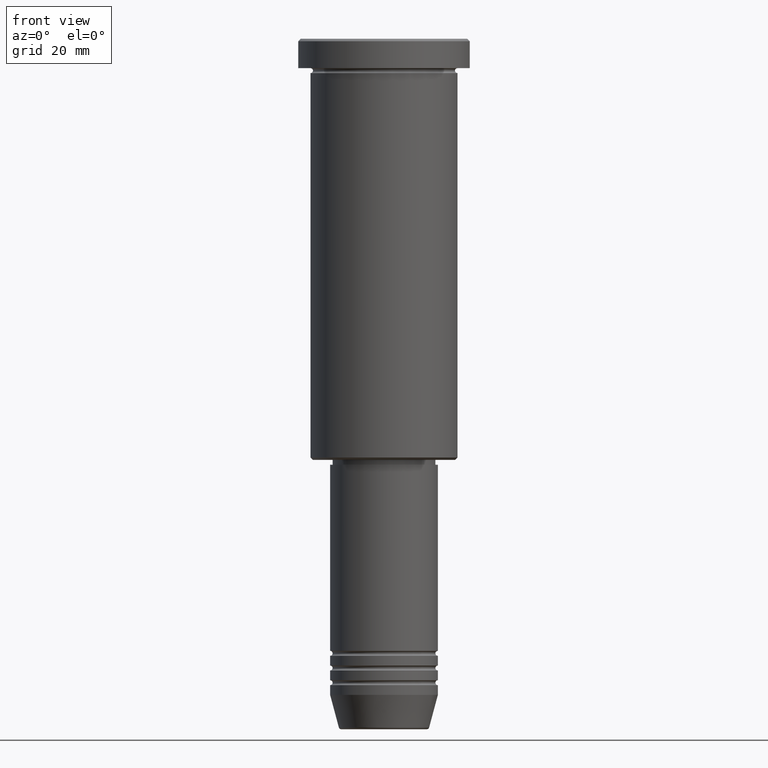
[diagram: clean part render]
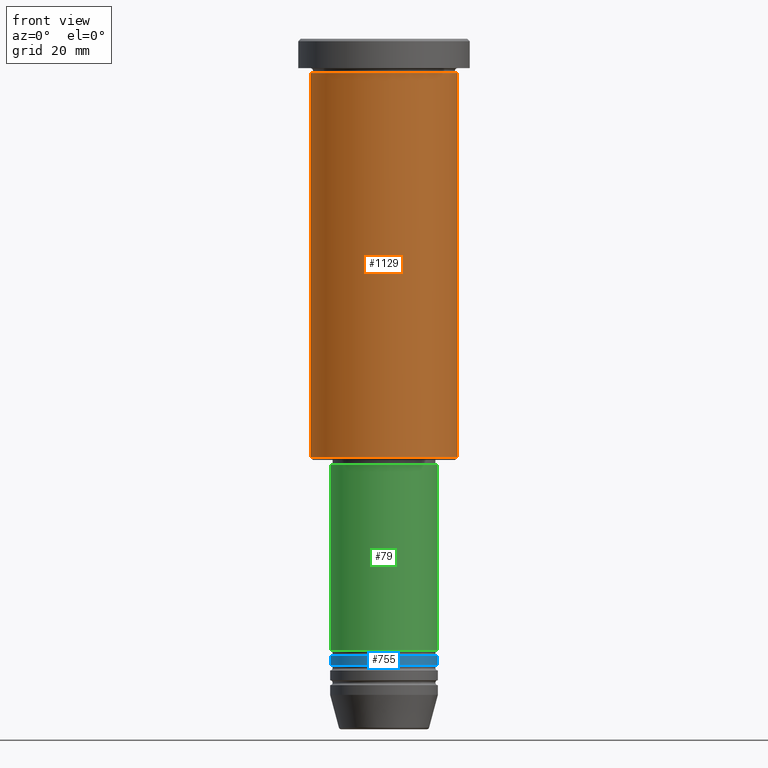
[diagram: same view with three faces highlighted in distinct colors, each labeled with its STEP entity id]
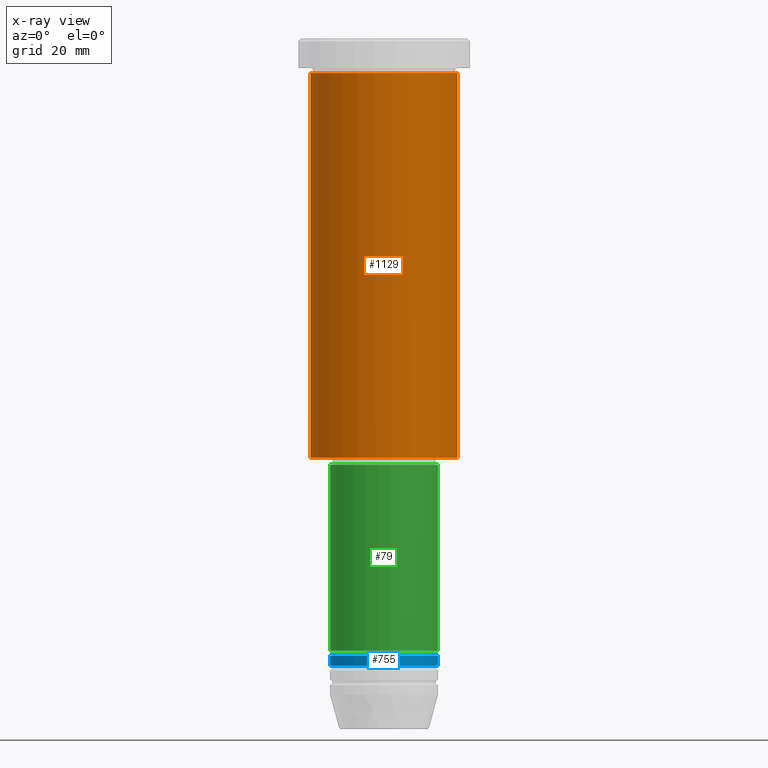
[diagram: x-ray of the same camera — body ghosted, the three highlighted faces saturated]
A machine part, front view with three faces highlighted in distinct colors.
The next image is the same camera in x-ray (body ghosted, the three faces saturated) — at least one of them is partly hidden behind the body in this view.
Their STEP definitions:

[orange] entity #1129 — the highlighted cylindrical surface (partial cylindrical patch) has radius 15 mm, axis along (-0, -0, 1).
#21 = EDGE_CURVE ( 'NONE', #873, #903, #604, .T. ) ;
#29 = VERTEX_POINT ( 'NONE', #278 ) ;
#42 = CARTESIAN_POINT ( 'NONE',  ( 15.00000000000000000, 0.000000000000000000, -85.50000000000004263 ) ) ;
#193 = EDGE_CURVE ( 'NONE', #29, #873, #473, .T. ) ;
#227 = CARTESIAN_POINT ( 'NONE',  ( 15.00000000000000000, 0.000000000000000000, 0.000000000000000000 ) ) ;
#273 = EDGE_CURVE ( 'NONE', #321, #903, #662, .T. ) ;
#278 = CARTESIAN_POINT ( 'NONE',  ( -15.00000000000000000, 1.836970198721029589E-15, -85.50000000000004263 ) ) ;
#317 = EDGE_CURVE ( 'NONE', #29, #321, #992, .T. ) ;
#321 = VERTEX_POINT ( 'NONE', #42 ) ;
#344 = CARTESIAN_POINT ( 'NONE',  ( 0.000000000000000000, 0.000000000000000000, -6.999999999999995559 ) ) ;
#357 = FACE_OUTER_BOUND ( 'NONE', #1064, .T. ) ;
#436 = DIRECTION ( 'NONE',  ( -0.000000000000000000, -0.000000000000000000, 1.000000000000000000 ) ) ;
#458 = AXIS2_PLACEMENT_3D ( 'NONE', #888, #436, #802 ) ;
#473 = LINE ( 'NONE', #728, #914 ) ;
#528 = DIRECTION ( 'NONE',  ( -0.000000000000000000, -0.000000000000000000, 1.000000000000000000 ) ) ;
#535 = ORIENTED_EDGE ( 'NONE', *, *, #21, .F. ) ;
#559 = CARTESIAN_POINT ( 'NONE',  ( 0.000000000000000000, 0.000000000000000000, -85.50000000000004263 ) ) ;
#584 = VECTOR ( 'NONE', #940, 1000.000000000000000 ) ;
#604 = CIRCLE ( 'NONE', #975, 15.00000000000000000 ) ;
#629 = DIRECTION ( 'NONE',  ( -0.000000000000000000, -0.000000000000000000, 1.000000000000000000 ) ) ;
#655 = DIRECTION ( 'NONE',  ( -0.000000000000000000, -0.000000000000000000, 1.000000000000000000 ) ) ;
#662 = LINE ( 'NONE', #227, #584 ) ;
#688 = ORIENTED_EDGE ( 'NONE', *, *, #273, .T. ) ;
#728 = CARTESIAN_POINT ( 'NONE',  ( -15.00000000000000000, 1.836970198721029589E-15, 0.000000000000000000 ) ) ;
#800 = AXIS2_PLACEMENT_3D ( 'NONE', #559, #655, #1024 ) ;
#802 = DIRECTION ( 'NONE',  ( 1.000000000000000000, 0.000000000000000000, 0.000000000000000000 ) ) ;
#873 = VERTEX_POINT ( 'NONE', #1043 ) ;
#888 = CARTESIAN_POINT ( 'NONE',  ( 0.000000000000000000, 0.000000000000000000, 0.000000000000000000 ) ) ;
#903 = VERTEX_POINT ( 'NONE', #1156 ) ;
#914 = VECTOR ( 'NONE', #629, 1000.000000000000000 ) ;
#940 = DIRECTION ( 'NONE',  ( -0.000000000000000000, -0.000000000000000000, 1.000000000000000000 ) ) ;
#975 = AXIS2_PLACEMENT_3D ( 'NONE', #344, #528, #1068 ) ;
#992 = CIRCLE ( 'NONE', #800, 15.00000000000000000 ) ;
#1024 = DIRECTION ( 'NONE',  ( -1.000000000000000000, 0.000000000000000000, 0.000000000000000000 ) ) ;
#1027 = ORIENTED_EDGE ( 'NONE', *, *, #317, .T. ) ;
#1043 = CARTESIAN_POINT ( 'NONE',  ( -15.00000000000000000, 1.836970198721029589E-15, -6.999999999999995559 ) ) ;
#1064 = EDGE_LOOP ( 'NONE', ( #1095, #1027, #688, #535 ) ) ;
#1068 = DIRECTION ( 'NONE',  ( 1.000000000000000000, 0.000000000000000000, 0.000000000000000000 ) ) ;
#1075 = CYLINDRICAL_SURFACE ( 'NONE', #458, 15.00000000000000000 ) ;
#1095 = ORIENTED_EDGE ( 'NONE', *, *, #193, .F. ) ;
#1129 = ADVANCED_FACE ( 'NONE', ( #357 ), #1075, .T. ) ;
#1156 = CARTESIAN_POINT ( 'NONE',  ( 15.00000000000000000, 0.000000000000000000, -6.999999999999995559 ) ) ;

[blue] entity #755 — the highlighted cylindrical surface (partial cylindrical patch) has radius 11 mm, axis along (-0, -0, 1).
#11 = EDGE_LOOP ( 'NONE', ( #377, #19, #130, #740 ) ) ;
#19 = ORIENTED_EDGE ( 'NONE', *, *, #689, .T. ) ;
#20 = LINE ( 'NONE', #385, #586 ) ;
#35 = CARTESIAN_POINT ( 'NONE',  ( 0.000000000000000000, 0.000000000000000000, 0.000000000000000000 ) ) ;
#36 = VERTEX_POINT ( 'NONE', #1122 ) ;
#39 = DIRECTION ( 'NONE',  ( -0.000000000000000000, -0.000000000000000000, 1.000000000000000000 ) ) ;
#70 = EDGE_CURVE ( 'NONE', #36, #628, #994, .T. ) ;
#97 = DIRECTION ( 'NONE',  ( -0.000000000000000000, -0.000000000000000000, 1.000000000000000000 ) ) ;
#130 = ORIENTED_EDGE ( 'NONE', *, *, #70, .T. ) ;
#149 = CARTESIAN_POINT ( 'NONE',  ( 0.000000000000000000, 0.000000000000000000, -125.9999999999999716 ) ) ;
#166 = CARTESIAN_POINT ( 'NONE',  ( -11.00000000000000000, 1.347111479062088405E-15, -125.9999999999999716 ) ) ;
#270 = DIRECTION ( 'NONE',  ( -0.000000000000000000, -0.000000000000000000, 1.000000000000000000 ) ) ;
#307 = DIRECTION ( 'NONE',  ( 1.000000000000000000, 0.000000000000000000, 0.000000000000000000 ) ) ;
#377 = ORIENTED_EDGE ( 'NONE', *, *, #425, .F. ) ;
#385 = CARTESIAN_POINT ( 'NONE',  ( -11.00000000000000000, 1.347111479062088405E-15, 0.000000000000000000 ) ) ;
#425 = EDGE_CURVE ( 'NONE', #576, #560, #20, .T. ) ;
#462 = AXIS2_PLACEMENT_3D ( 'NONE', #35, #39, #307 ) ;
#470 = FACE_OUTER_BOUND ( 'NONE', #11, .T. ) ;
#534 = CARTESIAN_POINT ( 'NONE',  ( 0.000000000000000000, 0.000000000000000000, -127.9999999999999716 ) ) ;
#556 = EDGE_CURVE ( 'NONE', #560, #628, #663, .T. ) ;
#560 = VERTEX_POINT ( 'NONE', #166 ) ;
#568 = DIRECTION ( 'NONE',  ( -0.000000000000000000, -0.000000000000000000, 1.000000000000000000 ) ) ;
#576 = VERTEX_POINT ( 'NONE', #772 ) ;
#586 = VECTOR ( 'NONE', #568, 1000.000000000000000 ) ;
#587 = AXIS2_PLACEMENT_3D ( 'NONE', #149, #1146, #869 ) ;
#628 = VERTEX_POINT ( 'NONE', #918 ) ;
#663 = CIRCLE ( 'NONE', #587, 11.00000000000000000 ) ;
#665 = CYLINDRICAL_SURFACE ( 'NONE', #462, 11.00000000000000000 ) ;
#689 = EDGE_CURVE ( 'NONE', #576, #36, #814, .T. ) ;
#740 = ORIENTED_EDGE ( 'NONE', *, *, #556, .F. ) ;
#755 = ADVANCED_FACE ( 'NONE', ( #470 ), #665, .T. ) ;
#772 = CARTESIAN_POINT ( 'NONE',  ( -11.00000000000000000, 1.347111479062088405E-15, -127.9999999999999716 ) ) ;
#778 = VECTOR ( 'NONE', #97, 1000.000000000000000 ) ;
#805 = CARTESIAN_POINT ( 'NONE',  ( 11.00000000000000000, 0.000000000000000000, 0.000000000000000000 ) ) ;
#814 = CIRCLE ( 'NONE', #1055, 11.00000000000000000 ) ;
#869 = DIRECTION ( 'NONE',  ( 1.000000000000000000, 0.000000000000000000, 0.000000000000000000 ) ) ;
#918 = CARTESIAN_POINT ( 'NONE',  ( 11.00000000000000000, 0.000000000000000000, -125.9999999999999716 ) ) ;
#989 = DIRECTION ( 'NONE',  ( 1.000000000000000000, 0.000000000000000000, 0.000000000000000000 ) ) ;
#994 = LINE ( 'NONE', #805, #778 ) ;
#1055 = AXIS2_PLACEMENT_3D ( 'NONE', #534, #270, #989 ) ;
#1122 = CARTESIAN_POINT ( 'NONE',  ( 11.00000000000000000, 0.000000000000000000, -127.9999999999999716 ) ) ;
#1146 = DIRECTION ( 'NONE',  ( -0.000000000000000000, -0.000000000000000000, 1.000000000000000000 ) ) ;

[green] entity #79 — the highlighted cylindrical surface (partial cylindrical patch) has radius 11 mm, axis along (-0, -0, 1).
#6 = DIRECTION ( 'NONE',  ( 1.000000000000000000, 0.000000000000000000, 0.000000000000000000 ) ) ;
#31 = EDGE_CURVE ( 'NONE', #687, #581, #567, .T. ) ;
#79 = ADVANCED_FACE ( 'NONE', ( #431 ), #452, .T. ) ;
#132 = EDGE_CURVE ( 'NONE', #581, #868, #160, .T. ) ;
#160 = CIRCLE ( 'NONE', #759, 11.00000000000000000 ) ;
#213 = CARTESIAN_POINT ( 'NONE',  ( -11.00000000000000000, 1.347111479062088405E-15, 0.000000000000000000 ) ) ;
#253 = CARTESIAN_POINT ( 'NONE',  ( 11.00000000000000000, 0.000000000000000000, -124.9999999999999716 ) ) ;
#283 = EDGE_LOOP ( 'NONE', ( #819, #698, #472, #550 ) ) ;
#286 = CARTESIAN_POINT ( 'NONE',  ( -11.00000000000000000, 1.347111479062088405E-15, -124.9999999999999716 ) ) ;
#388 = VECTOR ( 'NONE', #1079, 1000.000000000000000 ) ;
#395 = DIRECTION ( 'NONE',  ( 1.000000000000000000, 0.000000000000000000, 0.000000000000000000 ) ) ;
#396 = DIRECTION ( 'NONE',  ( -0.000000000000000000, -0.000000000000000000, 1.000000000000000000 ) ) ;
#431 = FACE_OUTER_BOUND ( 'NONE', #283, .T. ) ;
#448 = CARTESIAN_POINT ( 'NONE',  ( 0.000000000000000000, 0.000000000000000000, 0.000000000000000000 ) ) ;
#452 = CYLINDRICAL_SURFACE ( 'NONE', #510, 11.00000000000000000 ) ;
#472 = ORIENTED_EDGE ( 'NONE', *, *, #684, .T. ) ;
#510 = AXIS2_PLACEMENT_3D ( 'NONE', #448, #1180, #6 ) ;
#531 = VERTEX_POINT ( 'NONE', #253 ) ;
#550 = ORIENTED_EDGE ( 'NONE', *, *, #132, .F. ) ;
#567 = LINE ( 'NONE', #213, #641 ) ;
#581 = VERTEX_POINT ( 'NONE', #730 ) ;
#641 = VECTOR ( 'NONE', #396, 1000.000000000000000 ) ;
#684 = EDGE_CURVE ( 'NONE', #531, #868, #902, .T. ) ;
#687 = VERTEX_POINT ( 'NONE', #286 ) ;
#698 = ORIENTED_EDGE ( 'NONE', *, *, #790, .T. ) ;
#730 = CARTESIAN_POINT ( 'NONE',  ( -11.00000000000000000, 1.347111479062088405E-15, -87.00000000000000000 ) ) ;
#759 = AXIS2_PLACEMENT_3D ( 'NONE', #1009, #1174, #990 ) ;
#790 = EDGE_CURVE ( 'NONE', #687, #531, #1128, .T. ) ;
#803 = CARTESIAN_POINT ( 'NONE',  ( 11.00000000000000000, 0.000000000000000000, 0.000000000000000000 ) ) ;
#819 = ORIENTED_EDGE ( 'NONE', *, *, #31, .F. ) ;
#836 = DIRECTION ( 'NONE',  ( -0.000000000000000000, -0.000000000000000000, 1.000000000000000000 ) ) ;
#862 = CARTESIAN_POINT ( 'NONE',  ( 11.00000000000000000, 0.000000000000000000, -87.00000000000000000 ) ) ;
#868 = VERTEX_POINT ( 'NONE', #862 ) ;
#902 = LINE ( 'NONE', #803, #388 ) ;
#990 = DIRECTION ( 'NONE',  ( 1.000000000000000000, 0.000000000000000000, 0.000000000000000000 ) ) ;
#1009 = CARTESIAN_POINT ( 'NONE',  ( 0.000000000000000000, 0.000000000000000000, -87.00000000000000000 ) ) ;
#1026 = CARTESIAN_POINT ( 'NONE',  ( 0.000000000000000000, 0.000000000000000000, -124.9999999999999716 ) ) ;
#1036 = AXIS2_PLACEMENT_3D ( 'NONE', #1026, #836, #395 ) ;
#1079 = DIRECTION ( 'NONE',  ( -0.000000000000000000, -0.000000000000000000, 1.000000000000000000 ) ) ;
#1128 = CIRCLE ( 'NONE', #1036, 11.00000000000000000 ) ;
#1174 = DIRECTION ( 'NONE',  ( -0.000000000000000000, -0.000000000000000000, 1.000000000000000000 ) ) ;
#1180 = DIRECTION ( 'NONE',  ( -0.000000000000000000, -0.000000000000000000, 1.000000000000000000 ) ) ;